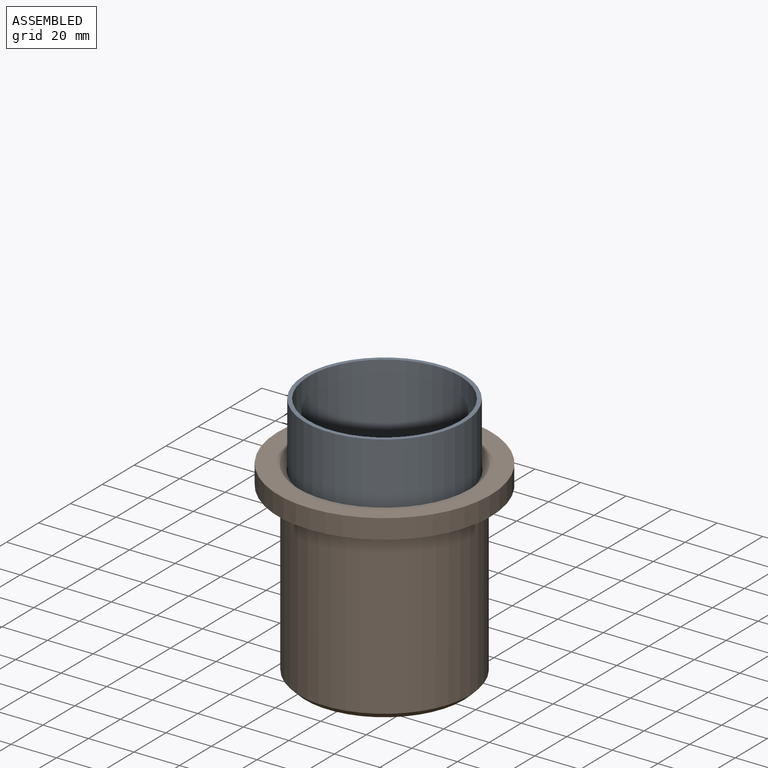
[diagram: assembled view]
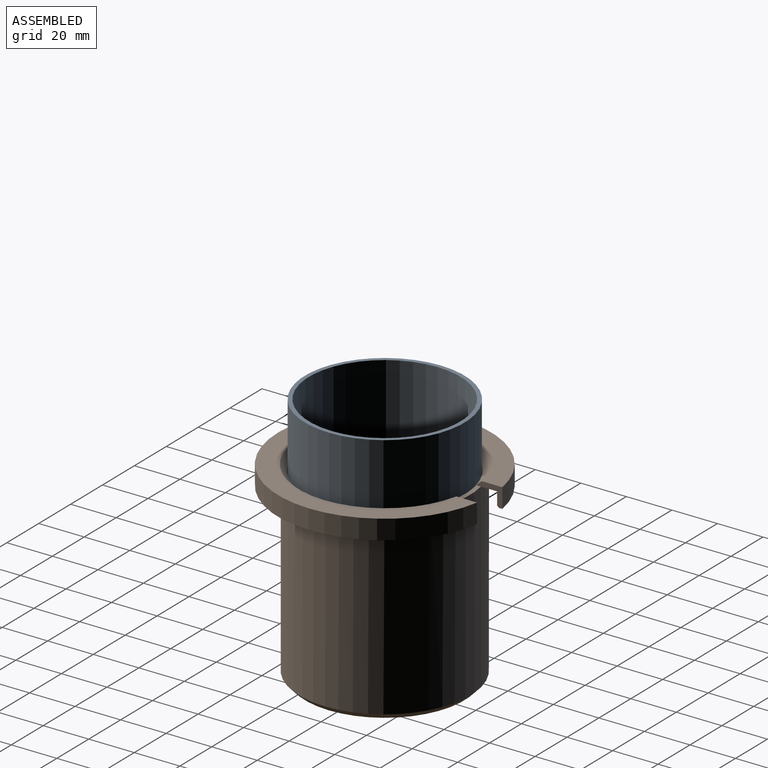
[diagram: assembled view, second angle]
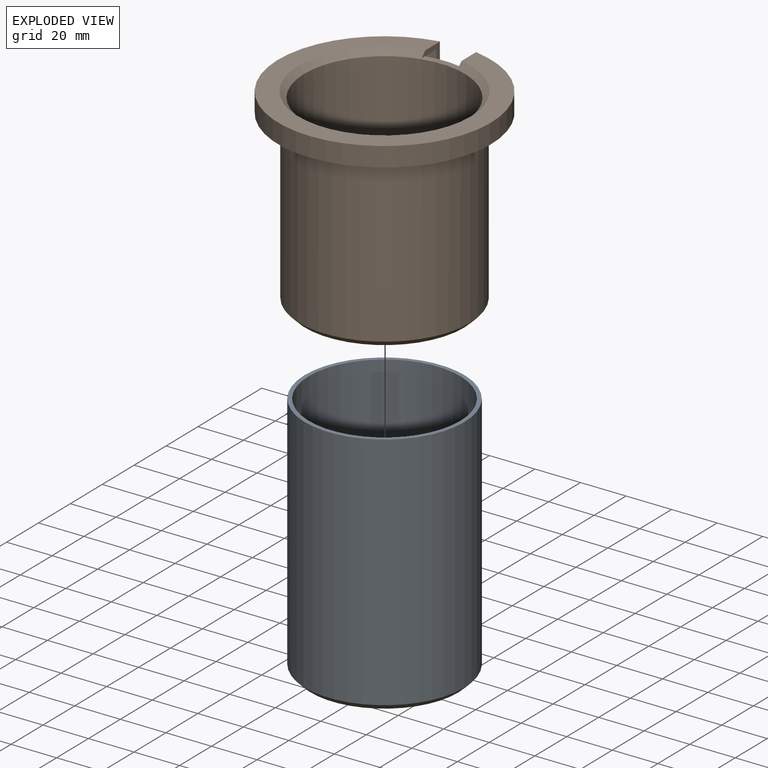
[diagram: exploded view]
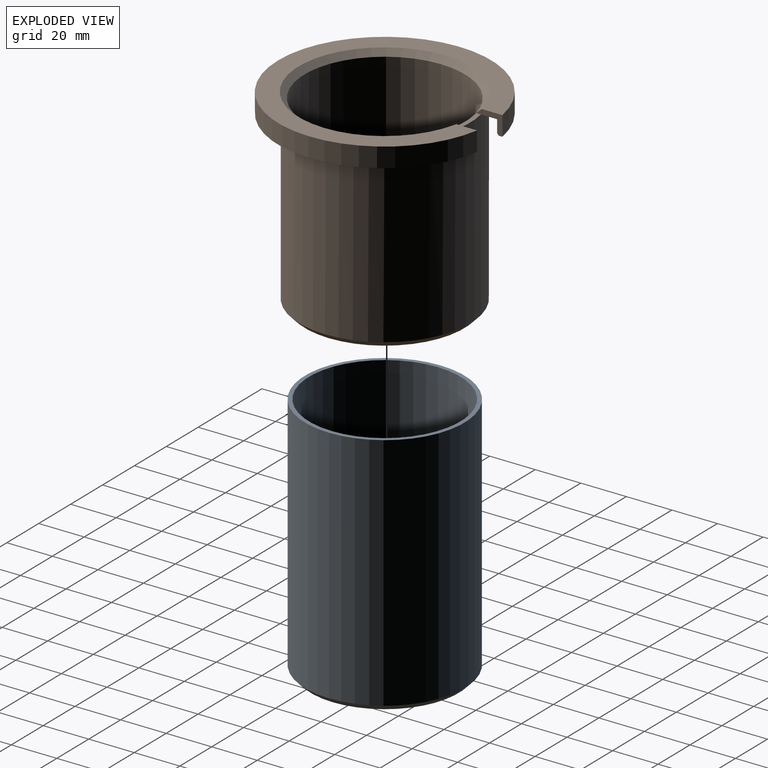
[diagram: exploded view, second angle]
ASSEMBLY  parts=2 mates=2
PART A: 7 faces, bbox 70x70x108 mm
  f0: plane 64.92x64.92mm, normal (0,0,-1), area 3310.1mm2, adj f6
  f1: cylinder r=35mm len=105.41mm, axis (0,0,-1), area 23180.9mm2, adj f2,f6
  f2: plane 70x70mm, normal (0,0,1), area 375.2mm2, adj f1,f3
  f3: cylinder r=33.25mm len=102.87mm, axis (0,0,-1), area 21491.2mm2, adj f2,f5
  f4: plane 61.42x61.42mm, normal (0,0,1), area 2962.8mm2, adj f5
  f5: cone r=33.25mm half-angle=45deg, axis (0,0,1), area 721.8mm2, adj f3,f4
  f6: cone r=32.46mm half-angle=45deg, axis (0,0,1), area 761.3mm2, adj f0,f1
PART B: 17 faces, bbox 93.5x92.8x84.5 mm
  f0: plane 89x88.29mm, normal (0,0,-1), area 1691.4mm2, adj f4,f5,f14,f15
  f1: plane 93.5x92.82mm, normal (0,0,-1), area 406.4mm2, adj f2,f13,f14,f15
  f2: cylinder r=46.75mm len=93.5mm, axis (0,0,-1), area 2389mm2, adj f1,f6,f14,f15
  f3: plane 69.92x69.92mm, normal (0,0,-1), area 3839.7mm2, adj f12
  f4: cylinder r=37.5mm len=79.71mm, axis (0,0,-1), area 18781.2mm2, adj f0,f12,f16
  f5: cylinder r=44.5mm len=89mm, axis (0,0,-1), area 1473.2mm2, adj f0,f13,f14,f15
  f6: plane 93.5x92.82mm, normal (0,0,1), area 2236.6mm2, adj f2,f9,f10,f14,f15
  f7: cylinder r=35.25mm len=77.17mm, axis (0,0,-1), area 17091.8mm2, adj f9,f11
  f8: plane 65.42x65.42mm, normal (0,0,1), area 3361.3mm2, adj f11
  f9: cone r=37.79mm half-angle=45deg, axis (0,0,1), area 772.5mm2, adj f6,f7,f10,f14,f16
  f10: cone r=37.79mm half-angle=45deg, axis (0,0,1), area 0.8mm2, adj f6,f9,f15
  f11: cone r=35.25mm half-angle=45deg, axis (0,0,1), area 766.9mm2, adj f7,f8
  f12: cone r=34.96mm half-angle=45deg, axis (0,0,1), area 817.7mm2, adj f3,f4
  f13: cone r=44.5mm half-angle=45deg, axis (0,0,-1), area 286.7mm2, adj f1,f5,f14,f15
  f14: plane 11.44x8.62mm, normal (1,0,0), area 37.3mm2, adj f0,f1,f2,f5,f6,f9,f13,f16
  f15: plane 11.44x8.62mm, normal (-1,0,0), area 37.3mm2, adj f0,f1,f2,f5,f6,f10,f13,f16
  f16: plane 15.88x2.86mm, normal (0,0,1), area 31.4mm2, adj f4,f9,f14,f15
PLACE A t=(0,0,2.25)mm
PLACE B at identity fixed
MATE planar A.f1 <-> B.f2  axis (0,0,-1) through (0,0,2.25)mm
MATE cylindrical A.f1 <-> B.f2  axis (0,0,-1) through (0,0,57.5)mm
